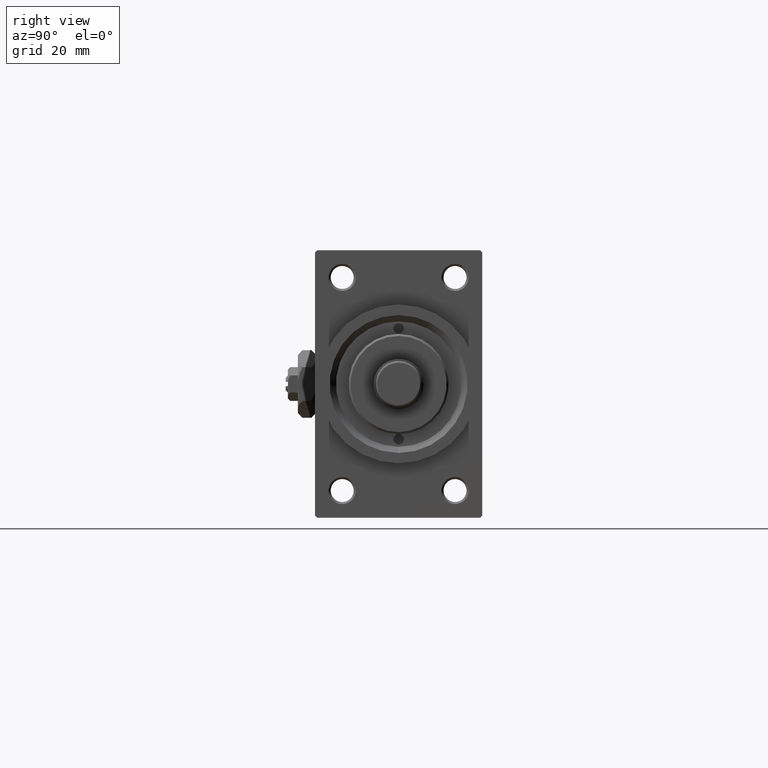
[diagram: clean part render]
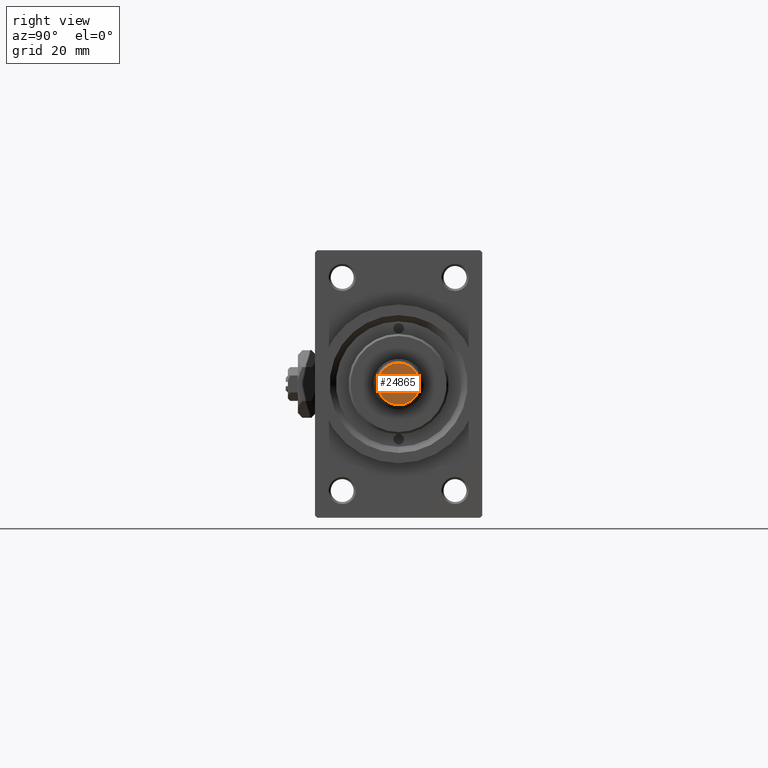
[diagram: same view with one face highlighted and labeled with its STEP entity id]
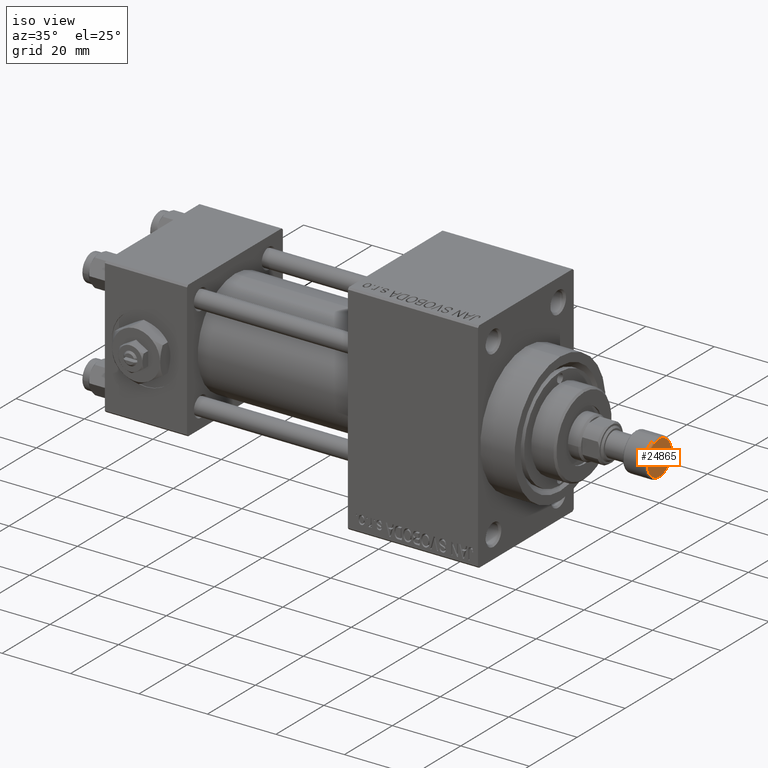
[diagram: same view with one face highlighted and labeled with its STEP entity id]
A machine part, right view. The second image highlights one B-rep face of the part: STEP entity #24865.
A second angle (iso view) of the same face is appended — the face is thin or edge-on in the first view.
In plain terms, the highlighted planar face has unit normal (1, 0, 0).
Its self-contained STEP definition (entity closure, byte-faithful):
#2605 = DIRECTION ( 'NONE',  ( 0.000000000000000000, 0.000000000000000000, 1.000000000000000000 ) ) ;
#2894 = AXIS2_PLACEMENT_3D ( 'NONE', #26769, #2605, #10605 ) ;
#8617 = EDGE_LOOP ( 'NONE', ( #30260, #26927 ) ) ;
#9446 = CARTESIAN_POINT ( 'NONE',  ( 4.999999999999999112, 0.000000000000000000, 0.000000000000000000 ) ) ;
#10605 = DIRECTION ( 'NONE',  ( 1.000000000000000000, 0.000000000000000000, -0.000000000000000000 ) ) ;
#13271 = DIRECTION ( 'NONE',  ( 1.000000000000000000, 0.000000000000000000, 0.000000000000000000 ) ) ;
#13969 = DIRECTION ( 'NONE',  ( 0.000000000000000000, 0.000000000000000000, 1.000000000000000000 ) ) ;
#14112 = PLANE ( 'NONE',  #2894 ) ;
#14214 = DIRECTION ( 'NONE',  ( 1.000000000000000000, 0.000000000000000000, 0.000000000000000000 ) ) ;
#16607 = AXIS2_PLACEMENT_3D ( 'NONE', #48501, #32238, #13271 ) ;
#23215 = EDGE_CURVE ( 'NONE', #37810, #46893, #29973, .T. ) ;
#24865 = ADVANCED_FACE ( 'NONE', ( #48341 ), #14112, .T. ) ;
#25149 = AXIS2_PLACEMENT_3D ( 'NONE', #44441, #13969, #14214 ) ;
#26769 = CARTESIAN_POINT ( 'NONE',  ( 0.000000000000000000, 0.000000000000000000, 0.000000000000000000 ) ) ;
#26927 = ORIENTED_EDGE ( 'NONE', *, *, #39694, .T. ) ;
#28405 = CARTESIAN_POINT ( 'NONE',  ( -4.999999999999999112, 6.429395695523603167E-16, 0.000000000000000000 ) ) ;
#29973 = CIRCLE ( 'NONE', #25149, 4.999999999999999112 ) ;
#30260 = ORIENTED_EDGE ( 'NONE', *, *, #23215, .T. ) ;
#32238 = DIRECTION ( 'NONE',  ( 0.000000000000000000, 0.000000000000000000, 1.000000000000000000 ) ) ;
#37810 = VERTEX_POINT ( 'NONE', #9446 ) ;
#39687 = CIRCLE ( 'NONE', #16607, 4.999999999999999112 ) ;
#39694 = EDGE_CURVE ( 'NONE', #46893, #37810, #39687, .T. ) ;
#44441 = CARTESIAN_POINT ( 'NONE',  ( 0.000000000000000000, 0.000000000000000000, 0.000000000000000000 ) ) ;
#46893 = VERTEX_POINT ( 'NONE', #28405 ) ;
#48341 = FACE_OUTER_BOUND ( 'NONE', #8617, .T. ) ;
#48501 = CARTESIAN_POINT ( 'NONE',  ( 0.000000000000000000, 0.000000000000000000, 0.000000000000000000 ) ) ;